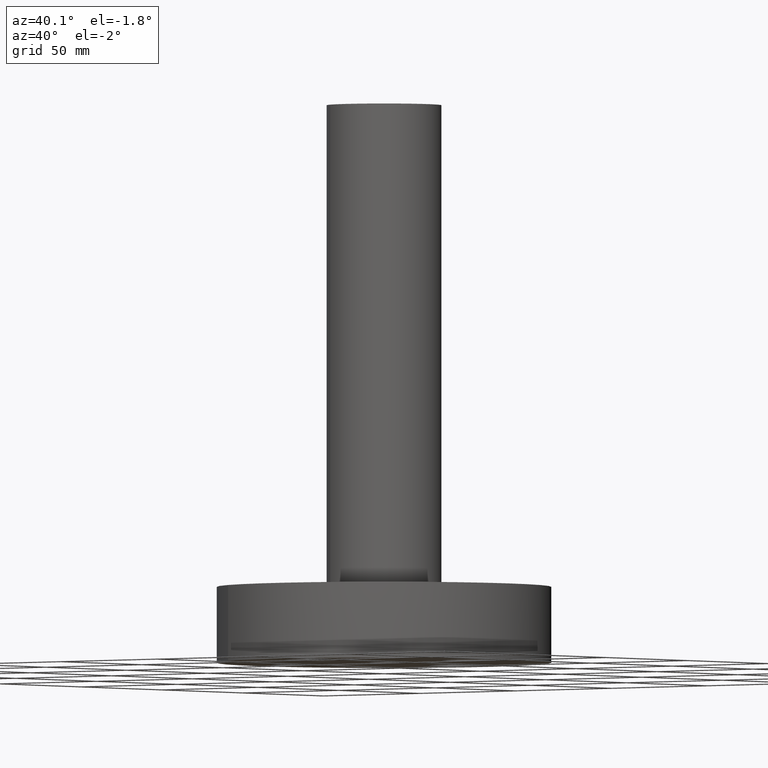
[diagram: clean part render]
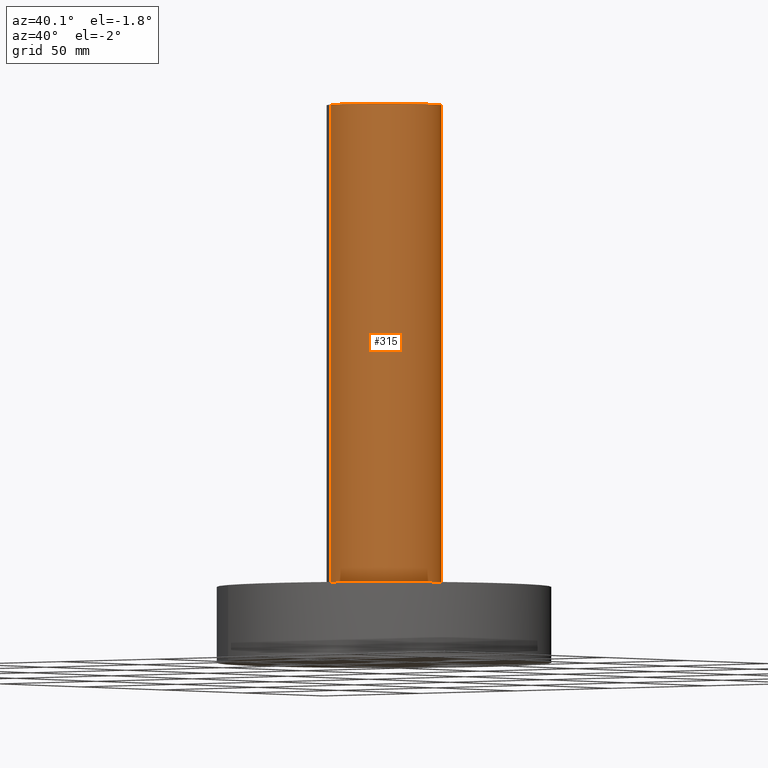
[diagram: same view with one face highlighted and labeled with its STEP entity id]
A machine part, auxiliary view. The second image highlights one B-rep face of the part: STEP entity #315.
In plain terms, the highlighted cylindrical surface (partial cylindrical patch) has radius 22.987 mm, axis along (0, 0, -1).
Its self-contained STEP definition (entity closure, byte-faithful):
#130=AXIS2_PLACEMENT_3D('Circle Axis2P3D',#128,#129,$) ;
#288=AXIS2_PLACEMENT_3D('Cylinder Axis2P3D',#285,#286,#287) ;
#299=AXIS2_PLACEMENT_3D('Circle Axis2P3D',#297,#298,$) ;
#123=CARTESIAN_POINT('Vertex',(-0.433880112439,-0.794212218514,1.19)) ;
#125=CARTESIAN_POINT('Vertex',(0.433880112439,0.794212218514,1.19)) ;
#128=CARTESIAN_POINT('Axis2P3D Location',(0.,0.,1.19)) ;
#285=CARTESIAN_POINT('Axis2P3D Location',(0.,0.,4.25000000002)) ;
#290=CARTESIAN_POINT('Line Origine',(0.433880112439,0.794212218514,4.97000000002)) ;
#294=CARTESIAN_POINT('Vertex',(0.433880112439,0.794212218514,8.75000000003)) ;
#297=CARTESIAN_POINT('Axis2P3D Location',(0.,0.,8.75000000003)) ;
#301=CARTESIAN_POINT('Vertex',(-0.433880112439,-0.794212218514,8.75000000003)) ;
#304=CARTESIAN_POINT('Line Origine',(-0.433880112439,-0.794212218514,4.97000000002)) ;
#129=DIRECTION('Axis2P3D Direction',(0.,0.,-0.0393700787402)) ;
#286=DIRECTION('Axis2P3D Direction',(0.,0.,-0.0393700787402)) ;
#287=DIRECTION('Axis2P3D XDirection',(-0.0188750212049,-0.0345504945626,0.)) ;
#291=DIRECTION('Vector Direction',(0.,0.,-0.0393700787402)) ;
#298=DIRECTION('Axis2P3D Direction',(0.,0.,-0.0393700787402)) ;
#305=DIRECTION('Vector Direction',(0.,0.,-0.0393700787402)) ;
#292=VECTOR('Line Direction',#291,0.0393700787402) ;
#306=VECTOR('Line Direction',#305,0.0393700787402) ;
#310=ORIENTED_EDGE('',*,*,#132,.F.) ;
#311=ORIENTED_EDGE('',*,*,#296,.T.) ;
#312=ORIENTED_EDGE('',*,*,#303,.T.) ;
#313=ORIENTED_EDGE('',*,*,#308,.F.) ;
#315=ADVANCED_FACE('PartBody',(#314),#289,.T.) ;
#131=CIRCLE('generated circle',#130,0.905000000004) ;
#300=CIRCLE('generated circle',#299,0.905000000004) ;
#289=CYLINDRICAL_SURFACE('generated cylinder',#288,0.905000000004) ;
#132=EDGE_CURVE('',#126,#124,#131,.T.) ;
#296=EDGE_CURVE('',#126,#295,#293,.F.) ;
#303=EDGE_CURVE('',#295,#302,#300,.T.) ;
#308=EDGE_CURVE('',#124,#302,#307,.F.) ;
#309=EDGE_LOOP('',(#310,#311,#312,#313)) ;
#314=FACE_OUTER_BOUND('',#309,.T.) ;
#293=LINE('Line',#290,#292) ;
#307=LINE('Line',#304,#306) ;
#124=VERTEX_POINT('',#123) ;
#126=VERTEX_POINT('',#125) ;
#295=VERTEX_POINT('',#294) ;
#302=VERTEX_POINT('',#301) ;